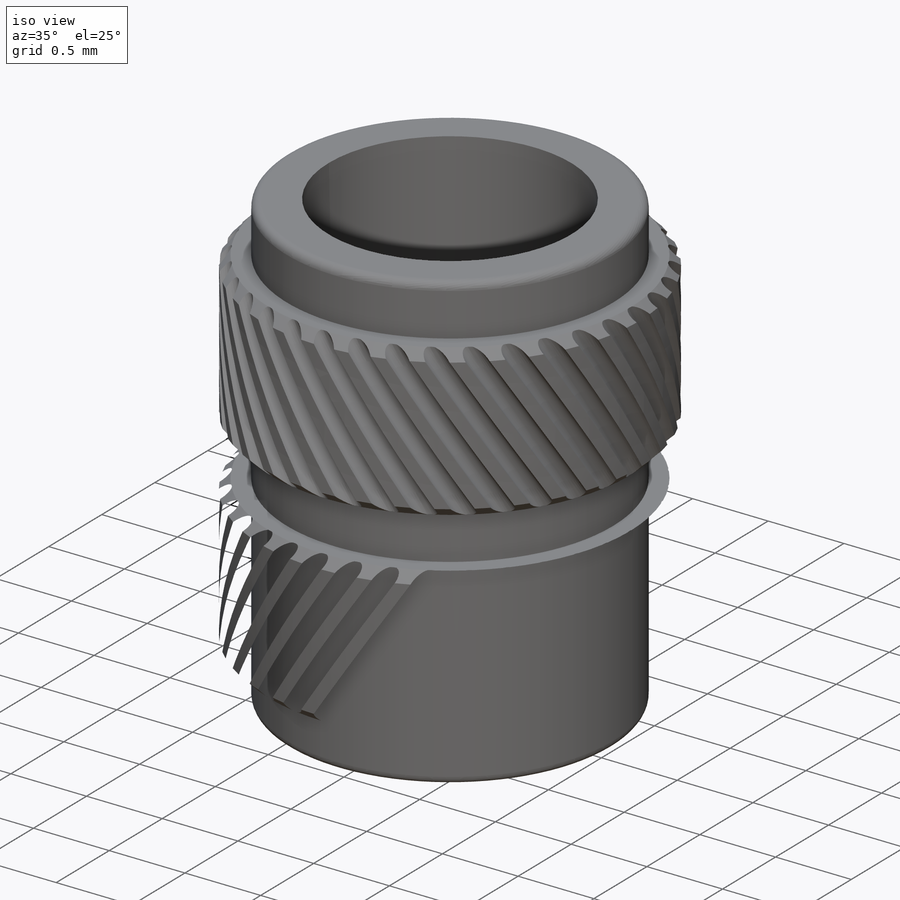
[diagram: iso view]
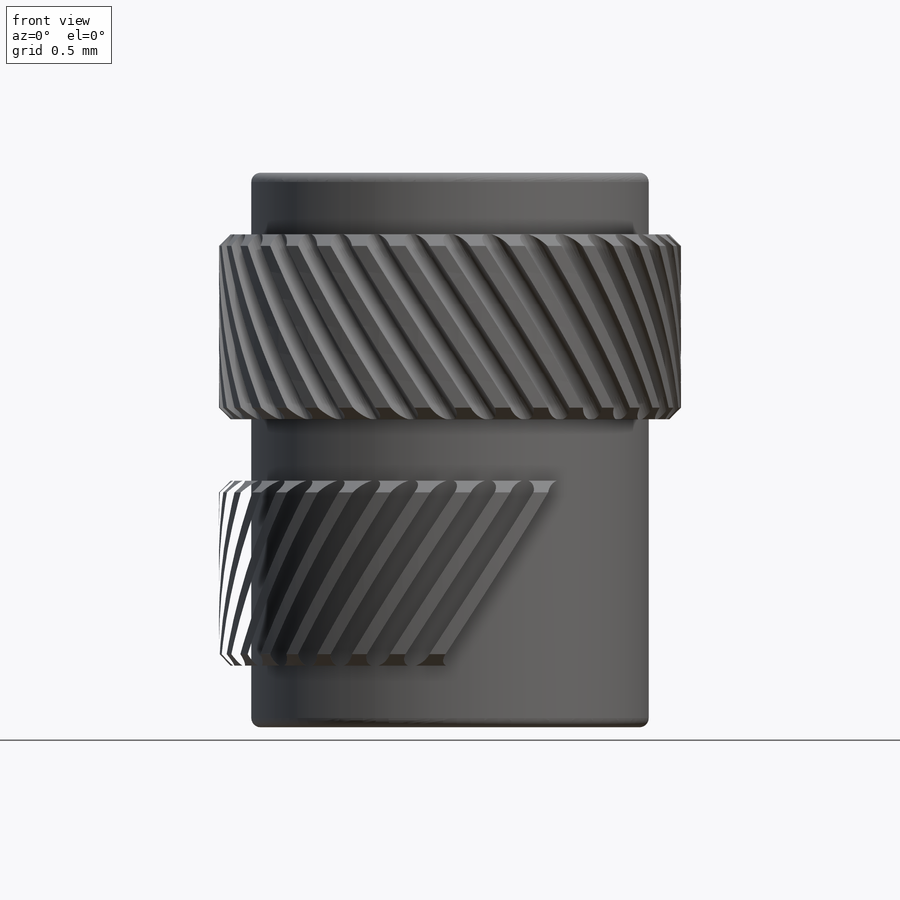
[diagram: front view]
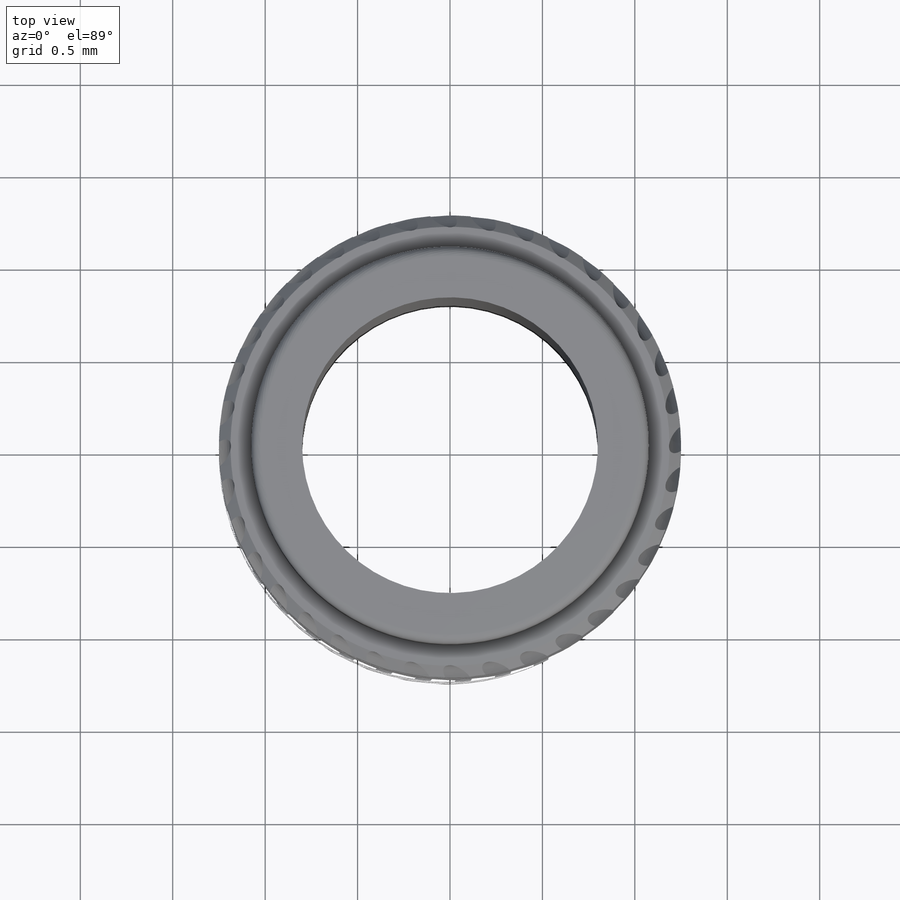
[diagram: top view]
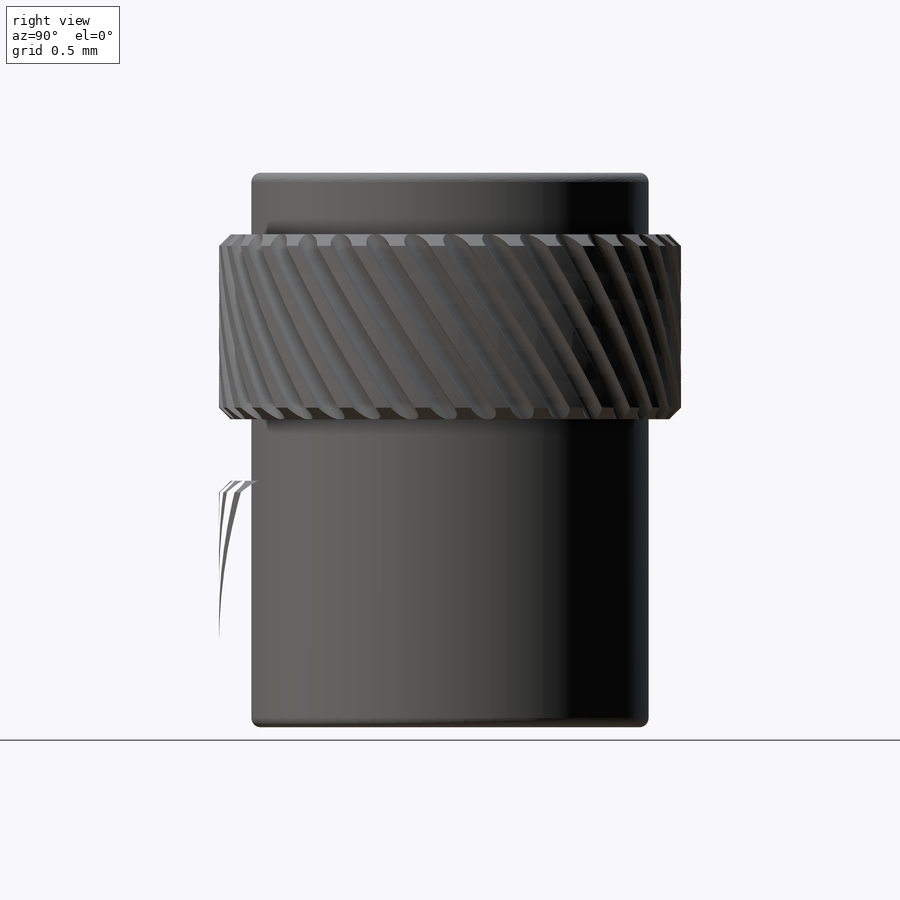
[diagram: right view]
SOLIDWORKS PART (.sldprt)
format: sldprt  version: not decoded by parser v0  size: 2,109,440 bytes
history: native  units: mm
features: sketch x9, revolve x2, helix x2, sweep x2, mirror x2, material x1, chamfer x1, pattern_circular x1, plane x1, fillet x1, cut_extrude x1 + 1 further entry (+13 scaffold rows collapsed)
feature tree (37):
  scaffold x13  (default folders/planes/origin — collapsed)
  material  "Material <not specified>"
  "Annotations"  RD1=1mm RD2=1mm
  sketch  "layout "  dims[Pitch=0.3mm Installed length=3.0mm Thread OD=1.6mm Cad A=2.5mm D5=1.0mm C Max=2.15mm]
  sketch  "Sketch2"
  revolve  "Revolve1"  Angle=360deg
  sketch  "Sketch3"
  revolve  "Revolve2"  Angle=360deg
  sketch  "Sketch4"  dims[D1=0.0mm]
  helix  "Helix/Spiral1"  Pitch=1mm
  sketch  "Sketch5"  dims[c1.D1=1.05mm c2.D1=~5.999956deg]
  sweep  "Cut-Sweep1"
  chamfer  "Chamfer1"  Distance=0.0625mm Angle=45deg
  pattern_circular  "CirPattern1"  Count=36 Angle=360deg
  plane  "Plane1"
  mirror  "Mirror2"
  sketch  "Sketch6"
  helix  "Helix/Spiral2"  Pitch=3.3mm
  sketch  "Sketch9"  dims[D1=0.05mm]
  fillet  "Fillet1"  Radius=0.05mm
  sketch  "Sketch10"  dims[D1=20.0mm]
  sketch  "Sketch7"  dims[D1=0.0225mm D2=0.09mm]
  sweep  "Sweep1"
  cut_extrude  "Cut-Extrude1"  [1 undecoded]
  mirror  "Mirror3"
decode coverage: 13 of 21 modeling features carry decoded parameters; 1 rows unclassified (native names shown)
note: ~ marks probable driven/reference dimensions
note: 1 parameter value undecoded
note: suppression state not decoded; provenance and decode notes live in map.json
